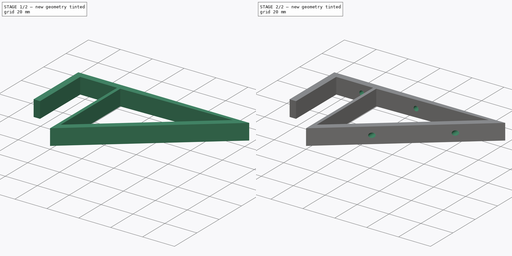
[diagram: build sequence overview — one tinted view per stage of 2, left to right]
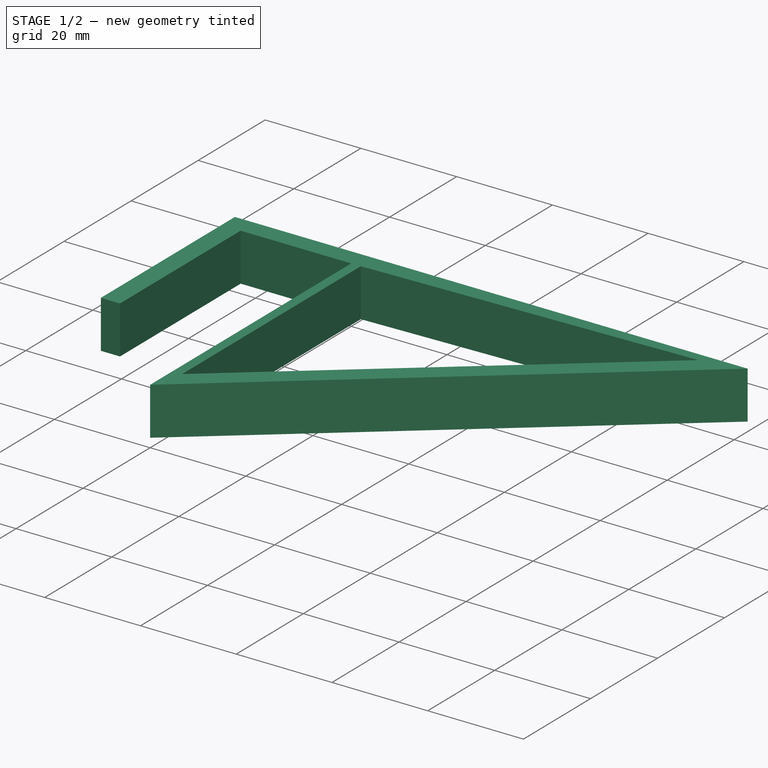
[diagram: stage 1 of 2 — iso view after this stage's code; geometry added in this stage tinted green]
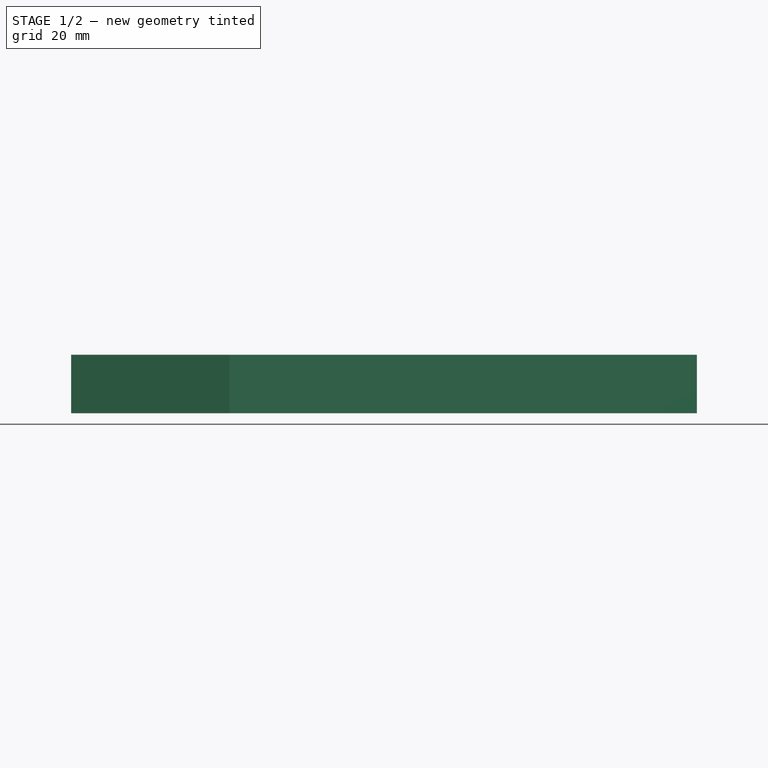
[diagram: stage 1 of 2 — front view after this stage's code; geometry added in this stage tinted green]
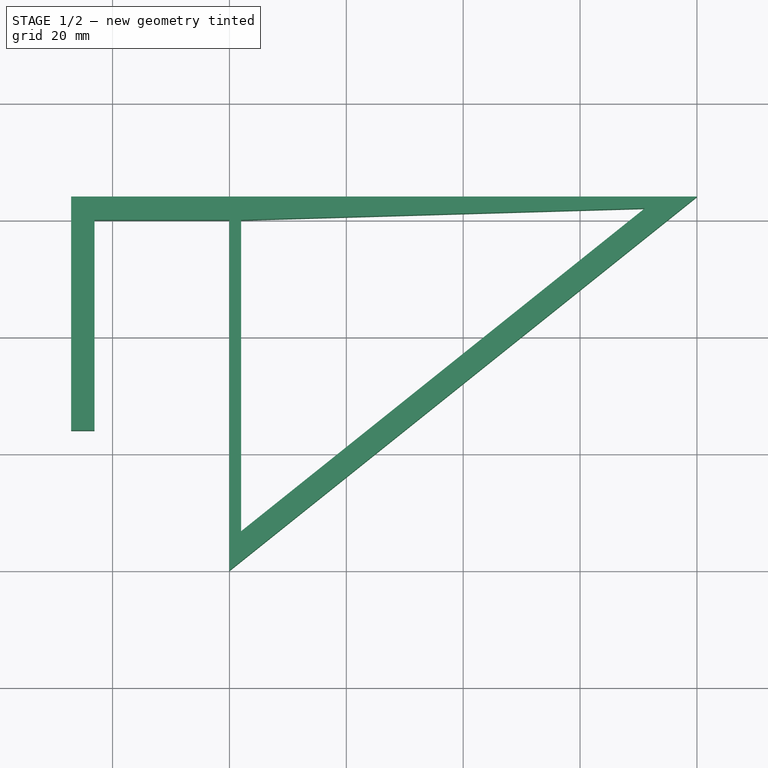
[diagram: stage 1 of 2 — top view after this stage's code; geometry added in this stage tinted green]
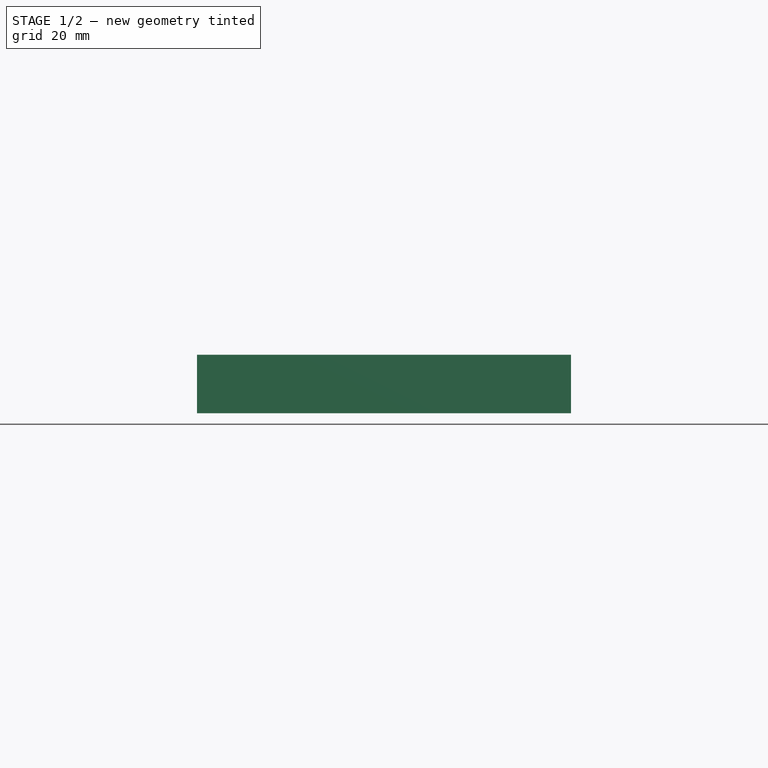
[diagram: stage 1 of 2 — right view after this stage's code; geometry added in this stage tinted green]
FCSTD DOCUMENT  (FreeCAD 0.19R24291 (Git))
Label: bed shelf bracket
License: All rights reserved
LicenseURL: http://en.wikipedia.org/wiki/All_rights_reserved
objects: Sketcher::SketchObject×2, Spreadsheet::Sheet×1, PartDesign::Pad×1, PartDesign::Pocket×1, PartDesign::Body×1
note: 7 computed .brp shape members not serialized (recipe doc carries the construction recipe); baked Part::Feature solids carry a one-line shape summary decoded from their .brp

FEATURE [Sketcher::SketchObject] Sketch
  FullyConstrained = false
  MapMode = 5
  Support = -> [XY_Plane]
  expr: Constraints[26] = Spreadsheet.angle_w
  expr: Constraints[21] = Spreadsheet.angle_w
  expr: Constraints[25] = Spreadsheet.diag_w
  expr: Constraints[15] = Spreadsheet.stretch_w
  expr: Constraints[14] = Spreadsheet.stretch_w
  sketch-geometry (10):
    g0: LineSegment StartX=80 StartY=4 StartZ=0 EndX=-27.1 EndY=4 EndZ=0
    g1: LineSegment StartX=-27.1 StartY=4 StartZ=0 EndX=-27.1 EndY=-36 EndZ=0
    g2: LineSegment StartX=-23.1 StartY=-36 StartZ=0 EndX=-23.1 EndY=0 EndZ=0
    g3: LineSegment StartX=-23.1 StartY=0 StartZ=0 EndX=0 EndY=0 EndZ=0
    g4: LineSegment StartX=0 StartY=0 StartZ=0 EndX=0 EndY=-60 EndZ=0
    g5: LineSegment StartX=0 StartY=-60 StartZ=0 EndX=80 EndY=4 EndZ=0
    g6: LineSegment StartX=2 StartY=0 StartZ=0 EndX=2 EndY=-53.2775 EndZ=0
    g7: LineSegment StartX=2 StartY=-53.2775 StartZ=0 EndX=71.0969 EndY=2 EndZ=0
    g8: LineSegment StartX=71.0969 StartY=2 StartZ=0 EndX=2 EndY=0 EndZ=0
    g9: LineSegment StartX=-23.1 StartY=-36 StartZ=0 EndX=-27.1 EndY=-36 EndZ=0
  constraints (28):
    c: Coincident(g0,g1)
    c: Vertical(g1)
    c: Vertical(g2)
    c: Coincident(g2,g3)
    c: Horizontal(g3)
    c: Coincident(g3,g4)
    c: PointOnObject(g4,g-2)
    c: Coincident(g4,g5)
    c: Coincident(g5,g0)
    c: Vertical(g6)
    c: Coincident(g6,g7)
    c: Coincident(g7,g8)
    c: Coincident(g8,g6)
    c: DistanceX(g4,g0) = 80
    c: DistanceY(g7,g0) = 2
    c: DistanceX(g3,g6) = 2
    c: DistanceY(g4,g4) = 60
    c: Coincident(g3,g-1)
    c: Horizontal(g9)
    c: Coincident(g1,g9)
    c: DistanceY(g1,g1) = 40
    c: DistanceX(g9,g9) = 4
    c: DistanceX(g2,g3) = 23.1
    c: Coincident(g2,g9)
    c: Parallel(g5,g7)
    c: Distance(g7,g5) = 4
    c: DistanceY(g2,g0) = 4
    c: Horizontal(g6,g3)
FEATURE [Spreadsheet::Sheet] Spreadsheet
  cells = A1=stretch_w; B1(stretch_w)=2; A2=angle_w; B2(angle_w)=4; A3=diag_w; B3(diag_w)=4; A4=height; B4(height)=10; A5=hole; B5(hole)=3
FEATURE [PartDesign::Pad] Pad
  Direction = (1,1,1)
  Length = 10
  Length2 = 100
  Profile = -> Sketch
  Type = 0
  expr: Length = Spreadsheet.height
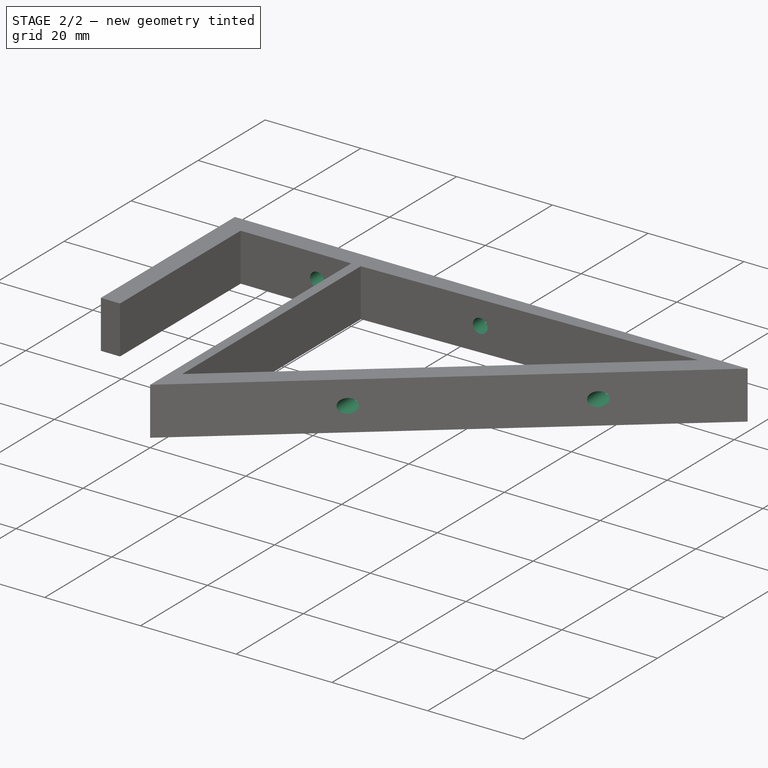
[diagram: stage 2 of 2 — iso view after this stage's code; geometry added in this stage tinted green]
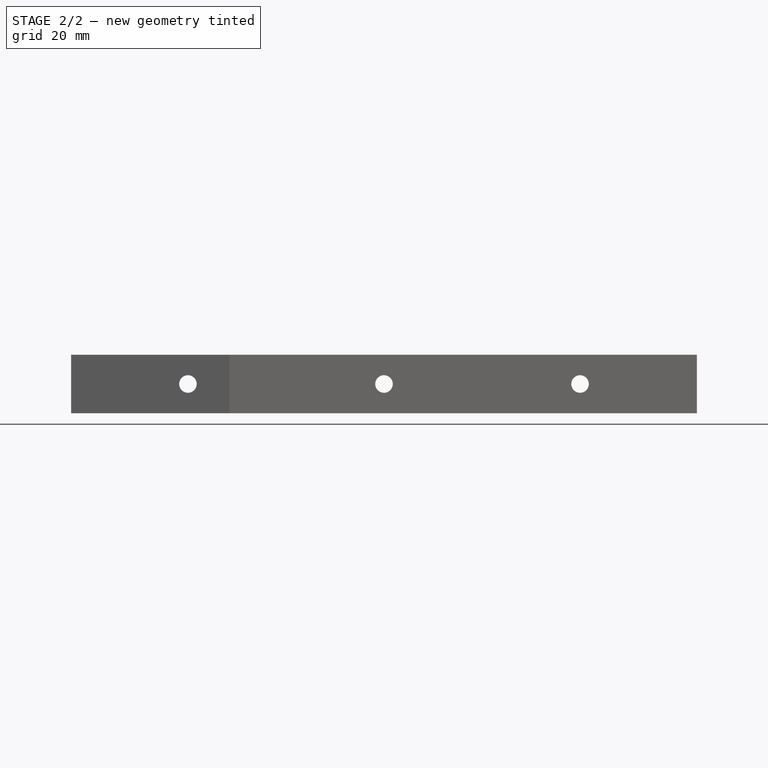
[diagram: stage 2 of 2 — front view after this stage's code; geometry added in this stage tinted green]
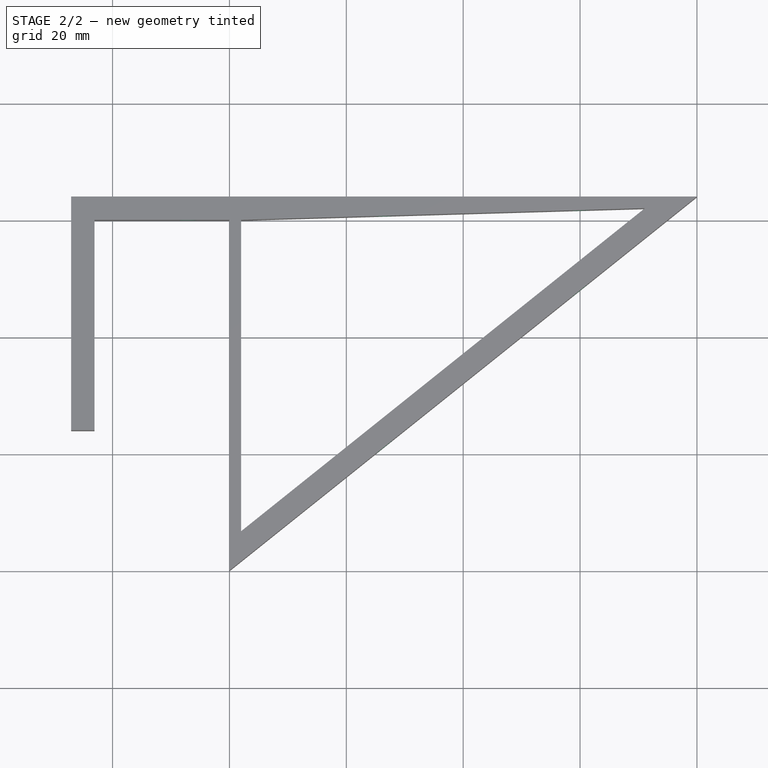
[diagram: stage 2 of 2 — top view after this stage's code; geometry added in this stage tinted green]
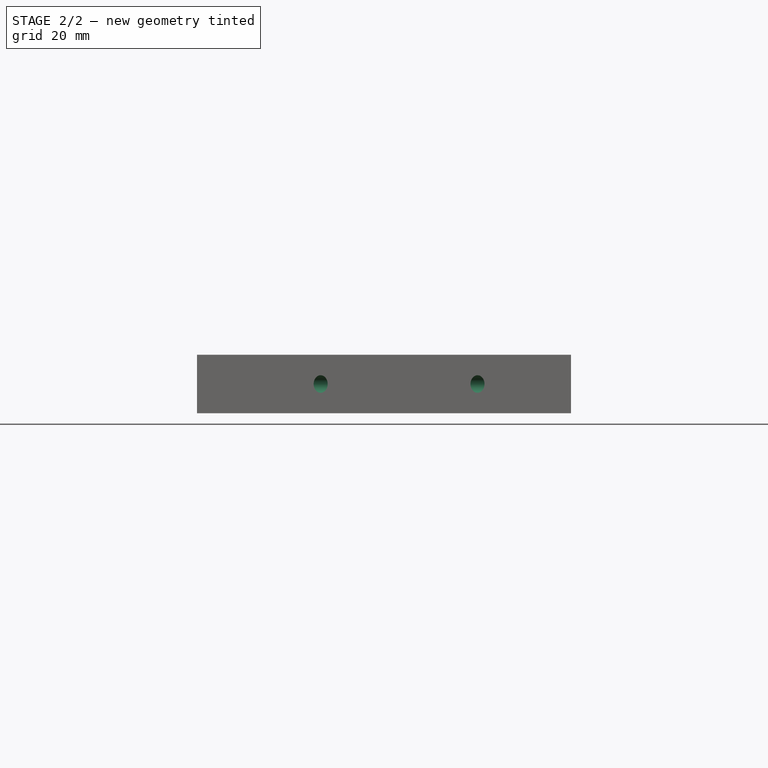
[diagram: stage 2 of 2 — right view after this stage's code; geometry added in this stage tinted green]
FEATURE [Sketcher::SketchObject] Sketch001
  ExternalGeometry = -> [Pad]
  FullyConstrained = true
  MapMode = 5
  Placement = pos=(0,4,0) rot=(0,0.707107,0.707107;3.14159rad)
  Support = -> [Pad]
  expr: Constraints[6] = Spreadsheet.hole
  expr: Constraints[0] = Spreadsheet.height / 2
  sketch-geometry (3):
    g0: Circle CenterX=-60 CenterY=5 CenterZ=0 NormalX=0 NormalY=0 NormalZ=1 AngleXU=0 Radius=1.5
    g1: Circle CenterX=7.1 CenterY=5 CenterZ=0 NormalX=0 NormalY=0 NormalZ=1 AngleXU=0 Radius=1.5
    g2: Circle CenterX=-26.45 CenterY=5 CenterZ=0 NormalX=0 NormalY=0 NormalZ=1 AngleXU=0 Radius=1.5
  constraints (8):
    c: DistanceY(g-1,g0) = 5
    c: Equal(g1,g0)
    c: Horizontal(g1,g0)
    c: DistanceX(g-3,g0) = 20
    c: DistanceX(g1,g-4) = 20
    c: Equal(g1,g2)
    c: Diameter(g0) = 3
    c: Symmetric(g1,g0,g2)
FEATURE [PartDesign::Pocket] Pocket
  BaseFeature = -> Pad
  Length = 5
  Length2 = 100
  Profile = -> Sketch001
  Type = 1
FEATURE [PartDesign::Body] Body
  Group = -> [Sketch,Pad,Sketch001,Pocket]
  Origin = -> Origin
  Tip = -> Pocket
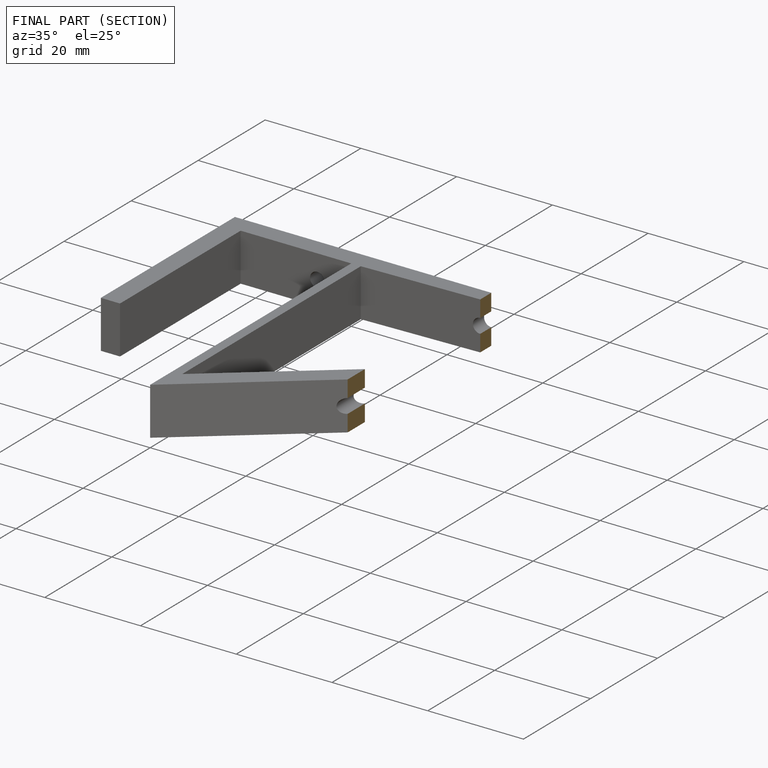
[diagram: finished part — half-section view (interior)]
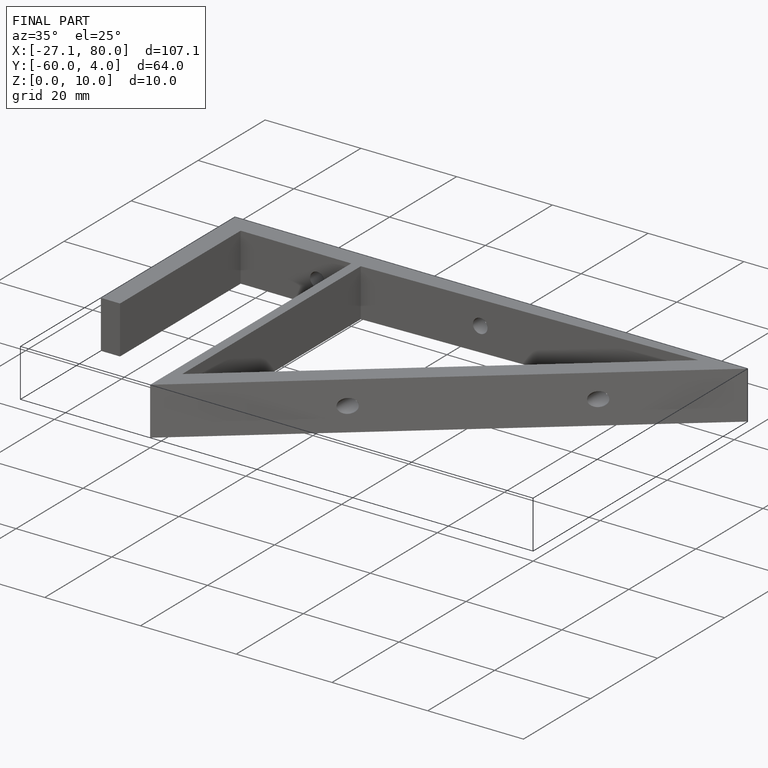
[diagram: finished part — iso view with bounding-box wireframe]
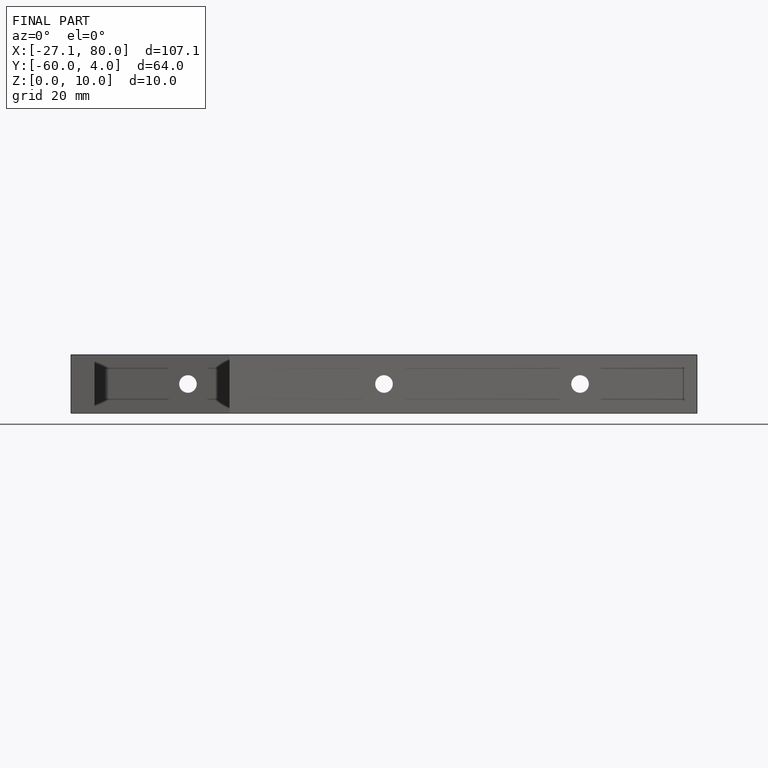
[diagram: finished part — front view with bounding-box wireframe]
